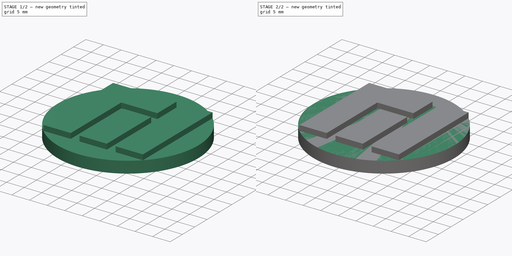
[diagram: build sequence overview — one tinted view per stage of 2, left to right]
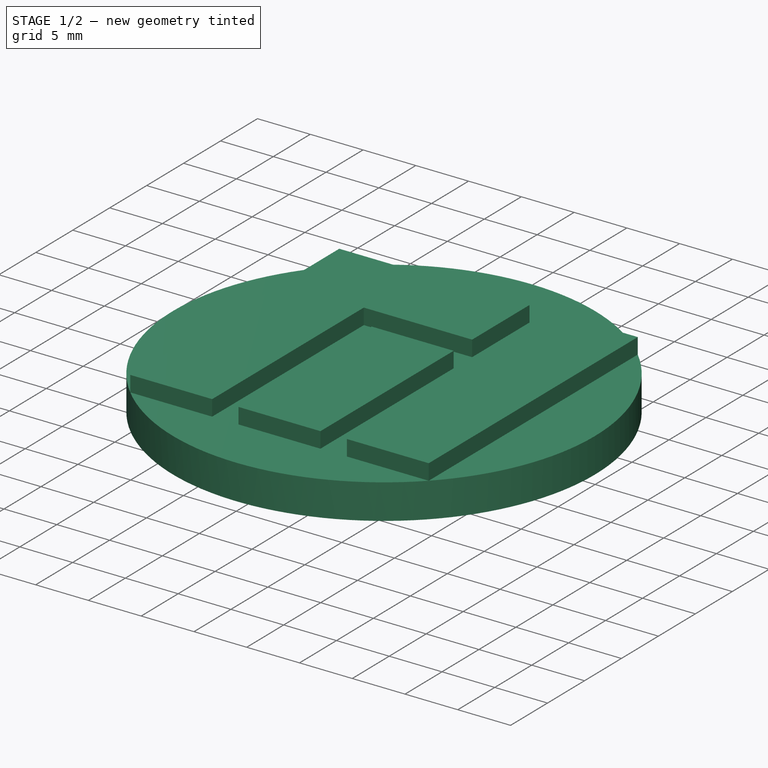
[diagram: stage 1 of 2 — iso view after this stage's code; geometry added in this stage tinted green]
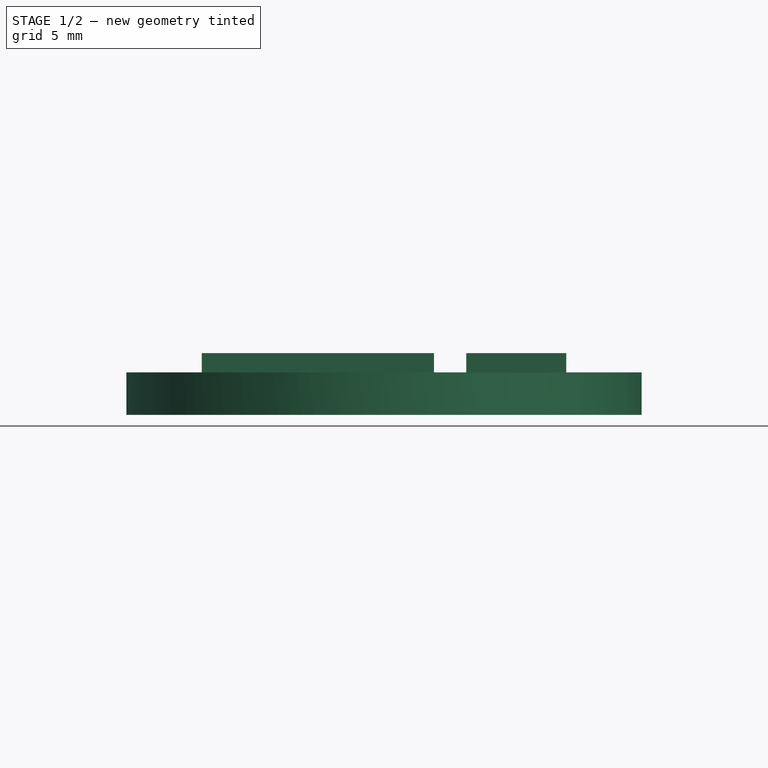
[diagram: stage 1 of 2 — front view after this stage's code; geometry added in this stage tinted green]
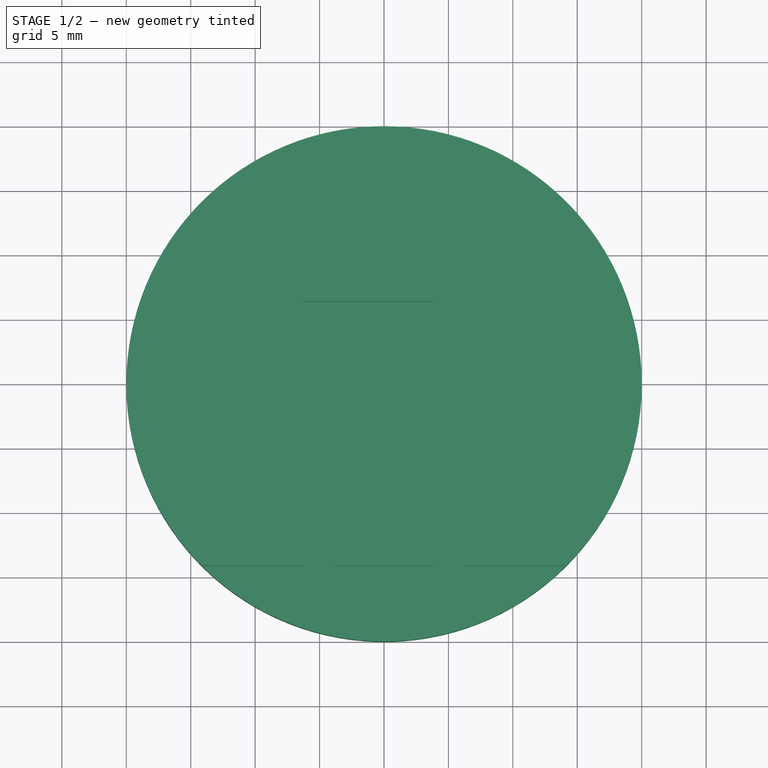
[diagram: stage 1 of 2 — top view after this stage's code; geometry added in this stage tinted green]
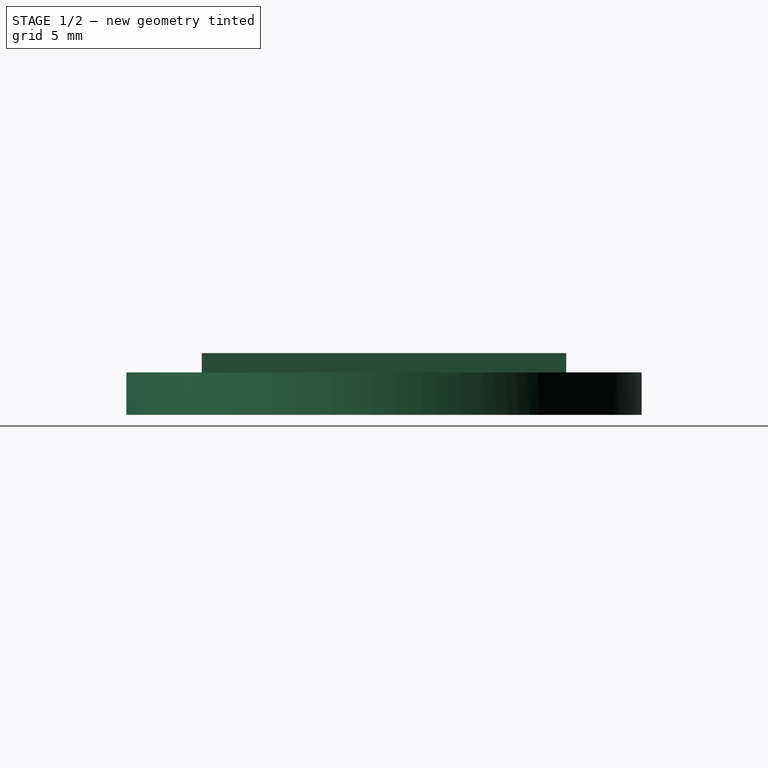
[diagram: stage 1 of 2 — right view after this stage's code; geometry added in this stage tinted green]
FCSTD DOCUMENT  (FreeCAD 0.16RUnknown)
Label: manjaro
License: CreativeCommons Attribution-ShareAlike
LicenseURL: http://creativecommons.org/licenses/by-sa/4.0/
objects: Part::Feature×2, App::DocumentObjectGroup×2, Sketcher::SketchObject×2, Part::Cylinder×1, PartDesign::Pocket×1, PartDesign::Pad×1
note: 9 computed .brp shape members not serialized (recipe doc carries the construction recipe); baked Part::Feature solids carry a one-line shape summary decoded from their .brp

FEATURE [Part::Feature] Sweep  label="key-ring-model-1"
  Placement = pos=(-1.2,24.7546,1.6391) rot=(0.333333,0.881918,0.333333;1.69612rad)
  shape: bbox 3.31 x 27.02 x 26.33 mm, 4 faces (baked)
FEATURE [Part::Feature] Cut  label="key-model-1"
  Placement = pos=(-5.46976,31.0266,0) rot=(0,0,1;0.517888rad)
  shape: bbox 49.82 x 36.6 x 2.3 mm, 44 faces (baked)
FEATURE [App::DocumentObjectGroup] Group  label="Assembly"
  Group = -> [Sweep,Cut]
FEATURE [Part::Cylinder] Cylinder  label="casino-chip-main body"
  Angle = 360
  Height = 3.3
  Radius = 20
FEATURE [PartDesign::Pad] Pad
  Length = 1.5
  Length2 = 100
  Sketch = -> Sketch001
  Type = 0
FEATURE [App::DocumentObjectGroup] Group001  label="Casino-chip-src"
  Group = -> [Cylinder,Pocket,Pad]
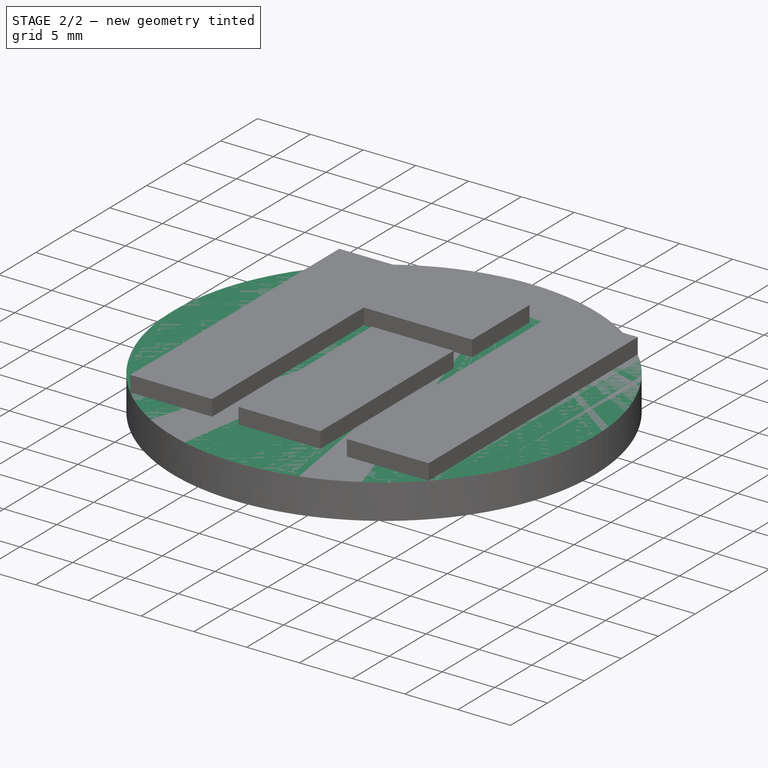
[diagram: stage 2 of 2 — iso view after this stage's code; geometry added in this stage tinted green]
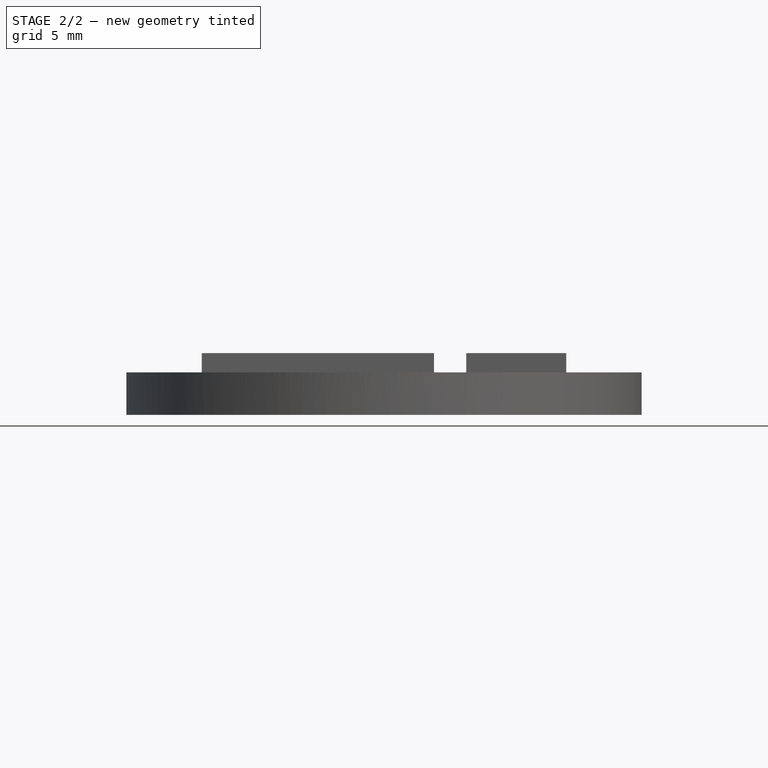
[diagram: stage 2 of 2 — front view after this stage's code; geometry added in this stage tinted green]
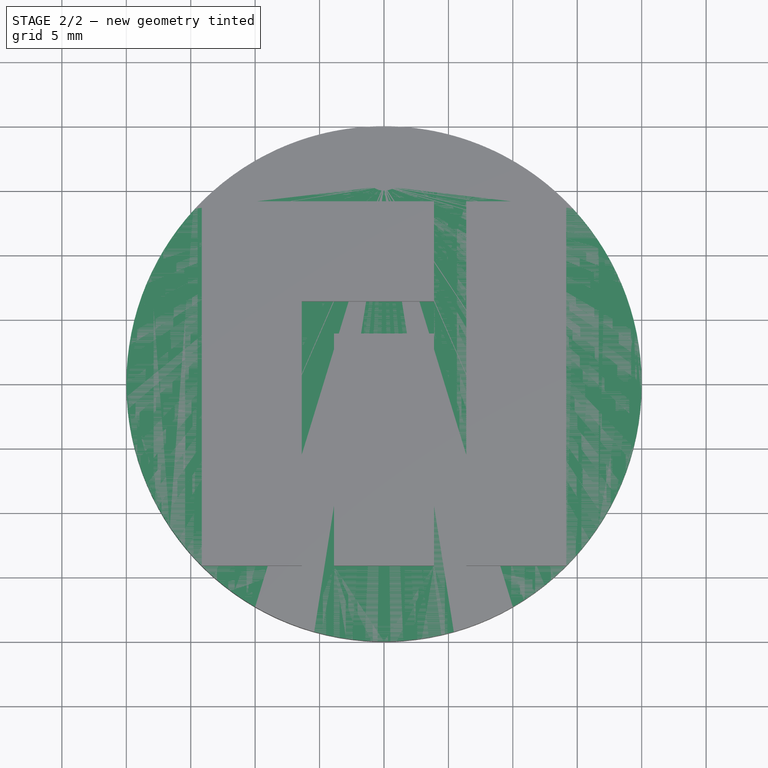
[diagram: stage 2 of 2 — top view after this stage's code; geometry added in this stage tinted green]
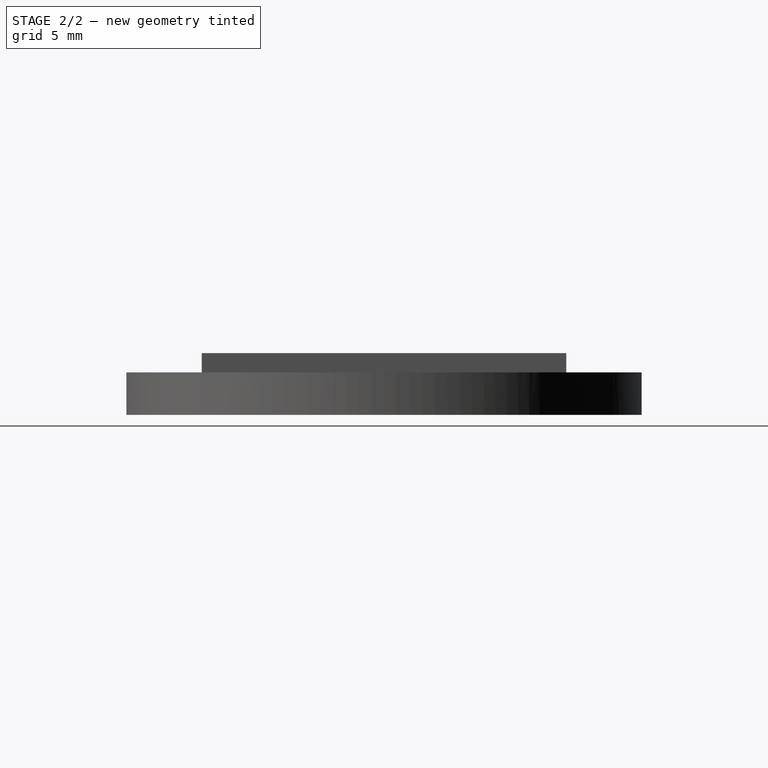
[diagram: stage 2 of 2 — right view after this stage's code; geometry added in this stage tinted green]
FEATURE [Sketcher::SketchObject] Sketch  label="hole-sketch"
  Placement = pos=(0,0,3.3) rot=(0,0,1;0rad)
  Support = -> Cylinder [Face2]
FEATURE [Sketcher::SketchObject] Sketch001
  ExternalGeometry = -> [Cylinder]
  Placement = pos=(0,0,3.3) rot=(0,0,1;0rad)
  Support = -> Cylinder [Face2]
  sketch-geometry (18):
    g0: LineSegment StartX=-14.1421 StartY=-14.1421 StartZ=0 EndX=-14.1421 EndY=14.1421 EndZ=0
    g1: LineSegment StartX=-14.1421 StartY=14.1421 StartZ=0 EndX=3.88071 EndY=14.1421 EndZ=0
    g2: LineSegment StartX=3.88071 StartY=14.1421 StartZ=0 EndX=3.88071 EndY=6.38071 EndZ=0
    g3: LineSegment StartX=3.88071 StartY=6.38071 StartZ=0 EndX=-6.38071 EndY=6.38071 EndZ=0
    g4: LineSegment StartX=-6.38071 StartY=6.38071 StartZ=0 EndX=-6.38071 EndY=-14.1421 EndZ=0
    g5: LineSegment StartX=-6.38071 StartY=-14.1421 StartZ=0 EndX=-14.1421 EndY=-14.1421 EndZ=0
    g6: LineSegment StartX=-3.88071 StartY=-14.1421 StartZ=0 EndX=-3.88071 EndY=3.88071 EndZ=0
    g7: LineSegment StartX=-3.88071 StartY=3.88071 StartZ=0 EndX=3.88071 EndY=3.88071 EndZ=0
    g8: LineSegment StartX=3.88071 StartY=3.88071 StartZ=0 EndX=3.88071 EndY=-14.1421 EndZ=0
    g9: LineSegment StartX=3.88071 StartY=-14.1421 StartZ=0 EndX=-3.88071 EndY=-14.1421 EndZ=0
    g10: LineSegment StartX=6.38071 StartY=-14.1421 StartZ=0 EndX=6.38071 EndY=14.1421 EndZ=0
    g11: LineSegment StartX=6.38071 StartY=14.1421 StartZ=0 EndX=14.1421 EndY=14.1421 EndZ=0
    g12: LineSegment StartX=14.1421 StartY=14.1421 StartZ=0 EndX=14.1421 EndY=-14.1421 EndZ=0
    g13: LineSegment StartX=14.1421 StartY=-14.1421 StartZ=0 EndX=6.38071 EndY=-14.1421 EndZ=0
    g14: LineSegment [constr] StartX=3.88071 StartY=6.38071 StartZ=0 EndX=3.88071 EndY=3.88071 EndZ=0
    g15: LineSegment [constr] StartX=-6.38071 StartY=-14.1421 StartZ=0 EndX=-3.88071 EndY=-14.1421 EndZ=0
    g16: LineSegment [constr] StartX=3.88071 StartY=-14.1421 StartZ=0 EndX=6.38071 EndY=-14.1421 EndZ=0
    g17: LineSegment [constr] StartX=0 StartY=0 StartZ=0 EndX=-14.1421 EndY=14.1421 EndZ=0
  constraints (50):
    c: Vertical(g0)
    c: Coincident(g0,g1)
    c: Coincident(g1,g2)
    c: Coincident(g2,g3)
    c: Coincident(g3,g4)
    c: Vertical(g4)
    c: Coincident(g4,g5)
    c: Coincident(g5,g0)
    c: Coincident(g6,g7)
    c: Horizontal(g7)
    c: Coincident(g7,g8)
    c: Vertical(g8)
    c: Coincident(g8,g9)
    c: Coincident(g9,g6)
    c: Horizontal(g9)
    c: Coincident(g10,g11)
    c: Horizontal(g11)
    c: Coincident(g11,g12)
    c: Vertical(g12)
    c: Coincident(g12,g13)
    c: Coincident(g13,g10)
    c: Vertical(g6)
    c: Vertical(g10)
    c: Horizontal(g1)
    c: Horizontal(g5)
    c: Horizontal(g13)
    c: Vertical(g2)
    c: Horizontal(g3)
    c: Equal(g5,g9)
    c: Equal(g9,g13)
    c: Equal(g5,g2)
    c: Equal(g0,g12)
    c: PointOnObject(g11,g-3)
    c: Coincident(g14,g7)
    c: Vertical(g14)
    c: Coincident(g2,g14)
    c: DistanceX(g4,g6) = 2.5
    c: Coincident(g16,g8)
    c: Coincident(g16,g10)
    c: Horizontal(g16)
    c: Coincident(g4,g15)
    c: Coincident(g6,g15)
    c: Equal(g15,g16)
    c: PointOnObject(g0,g-3)
    c: PointOnObject(g0,g-3)
    c: Horizontal(g15)
    c: Equal(g14,g16)
    c: Coincident(g17,g0)
    c: Angle(g-2,g17) = 0.785398
    c: Coincident(g17,g-1)
FEATURE [PartDesign::Pocket] Pocket  label="casino-chip-key-chain"
  Length = 5
  Sketch = -> Sketch
  Type = 1
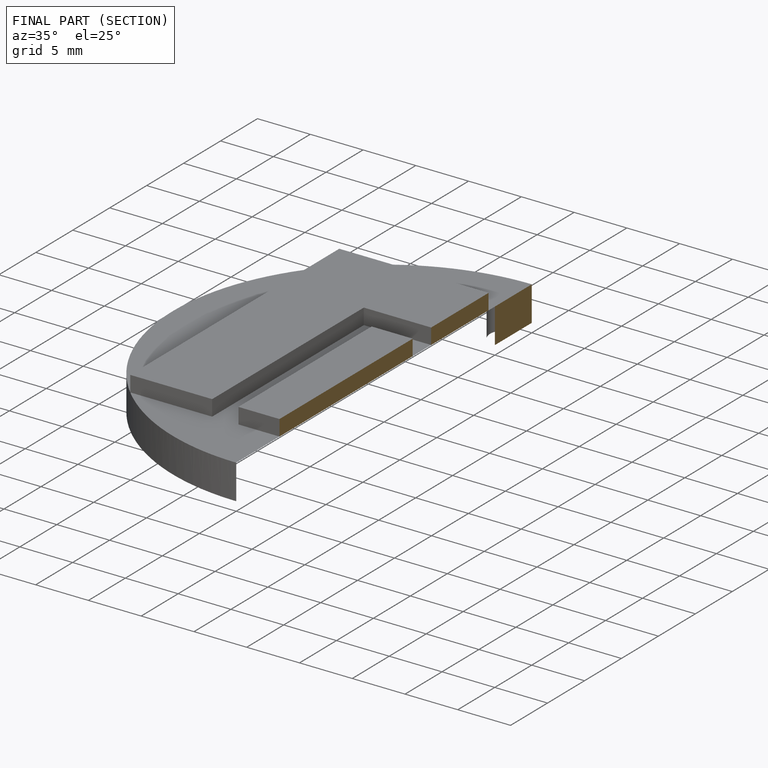
[diagram: finished part — half-section view (interior)]
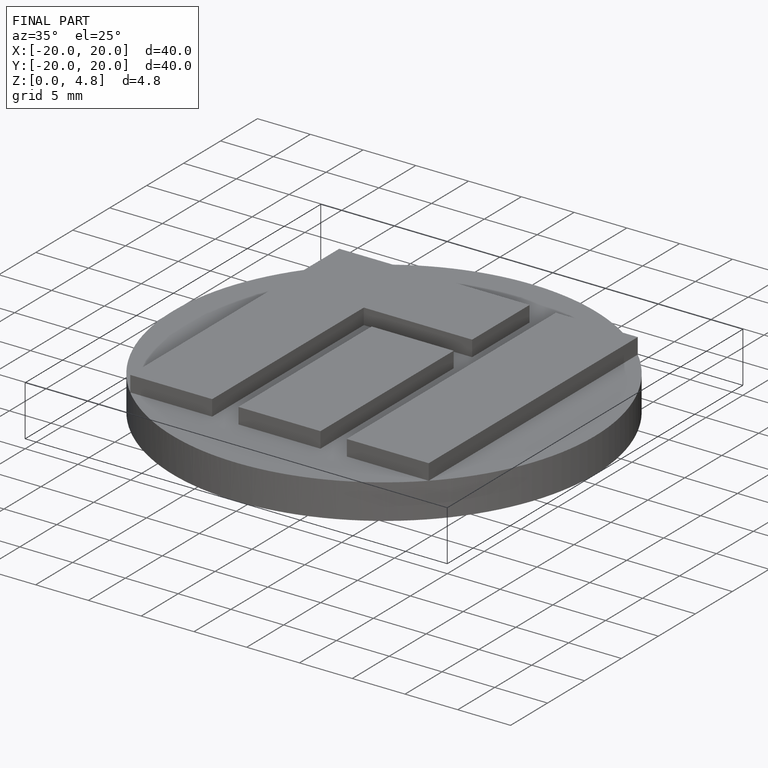
[diagram: finished part — iso view with bounding-box wireframe]
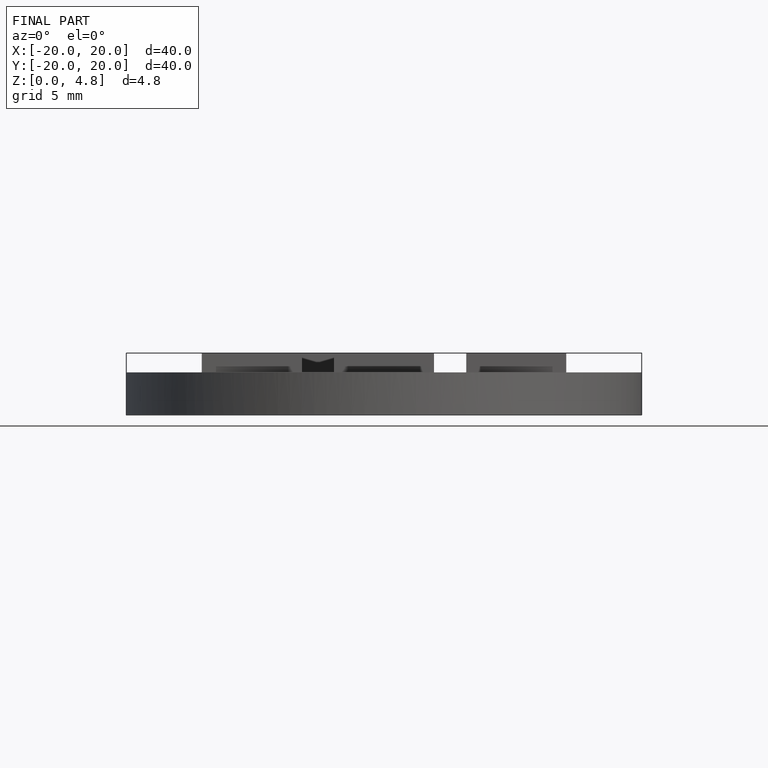
[diagram: finished part — front view with bounding-box wireframe]
